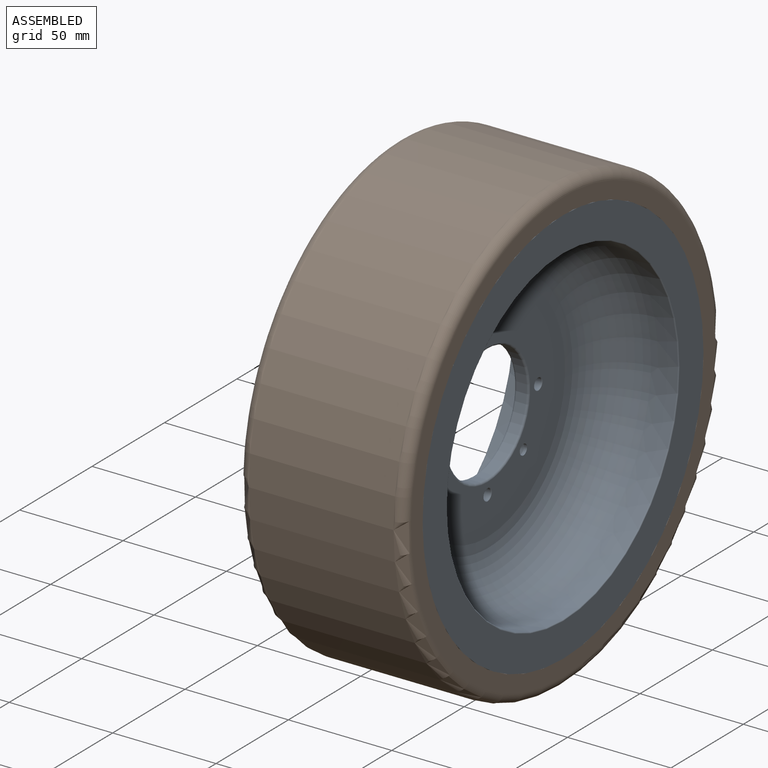
[diagram: assembled view]
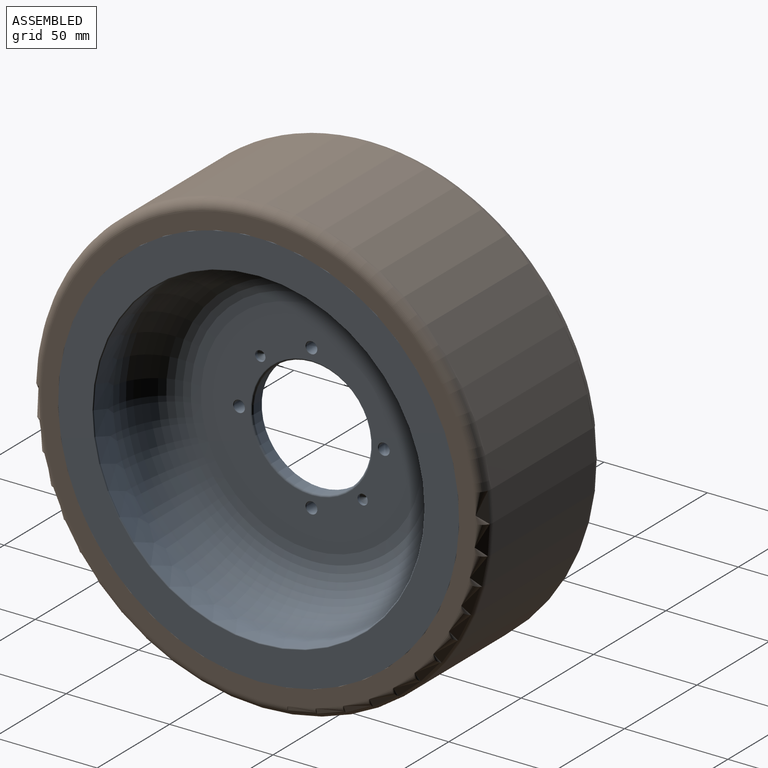
[diagram: assembled view, second angle]
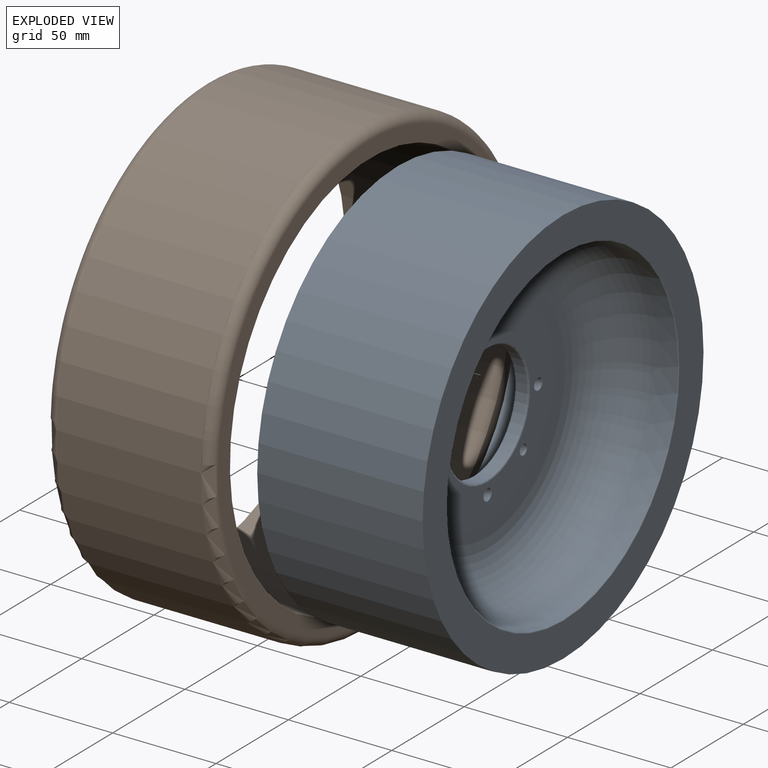
[diagram: exploded view]
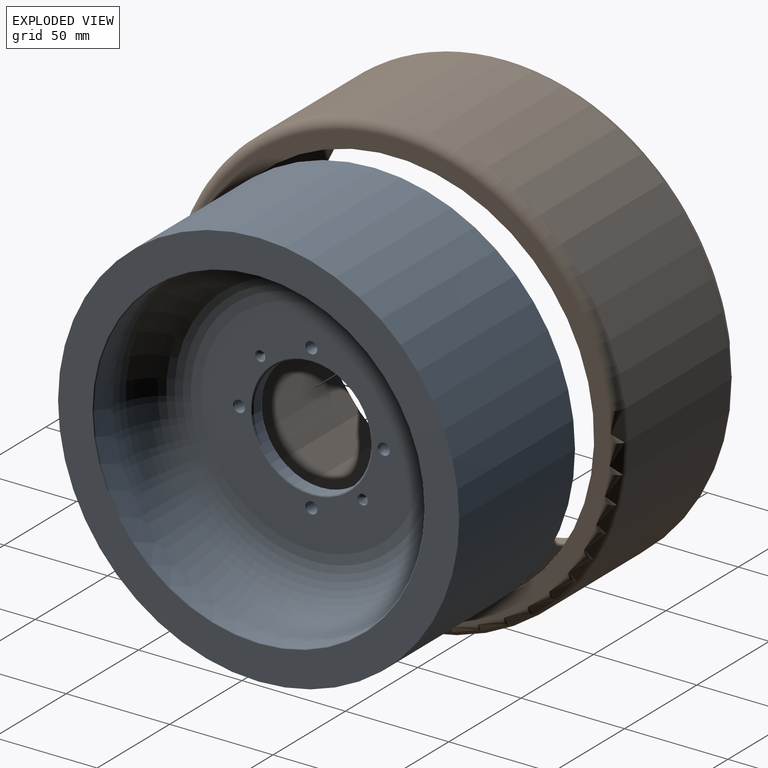
[diagram: exploded view, second angle]
ASSEMBLY  parts=2 mates=2
PART A: 30 faces, bbox 88.8x194x194 mm
  f0: cylinder r=97mm len=194mm, axis (-1,0,0), area 48757.5mm2, adj f1,f2
  f1: plane 194x194mm, normal (1,0,0), area 9200.9mm2, adj f0,f16
  f2: plane 194x194mm, normal (-1,0,0), area 9200.9mm2, adj f0,f17
  f3: cylinder r=80mm len=160mm, axis (-1,0,0), area 4775.2mm2, adj f5,f17
  f4: plane 107x107mm, normal (-1,0,0), area 6156mm2, adj f5,f14,f18,f20,f22,f24
  f5: torus R=53.5mm, axis (-1,0,0), area 18405mm2, adj f3,f4
  f6: cylinder r=80mm len=160mm, axis (-1,0,0), area 4775.2mm2, adj f7,f16
  f7: torus R=53.5mm, axis (-1,0,0), area 18405mm2, adj f6,f8
  f8: plane 107x107mm, normal (1,0,0), area 6116.7mm2, adj f7,f15,f19,f21,f23,f25,f27,f29
  f9: cylinder r=28.5mm len=57mm, axis (-1,0,0), area 895.4mm2, adj f14,f15
  f10: cylinder r=2.65mm len=6.6mm, axis (1,0,0), area 109.9mm2, adj f22,f23
  f11: cylinder r=2.65mm len=6.6mm, axis (1,0,0), area 109.9mm2, adj f18,f19
  f12: cylinder r=2.65mm len=6.6mm, axis (1,0,0), area 109.9mm2, adj f20,f21
  f13: cylinder r=2.65mm len=6.6mm, axis (1,0,0), area 109.9mm2, adj f24,f25
  f14: torus R=29.5mm, axis (-1,0,0), area 284.9mm2, adj f4,f9
  f15: torus R=29.5mm, axis (-1,0,0), area 284.9mm2, adj f8,f9
  f16: torus R=80.5mm, axis (1,0,0), area 395.7mm2, adj f1,f6
  f17: torus R=80.5mm, axis (1,0,0), area 395.7mm2, adj f2,f3
  f18: cone r=2.65mm half-angle=45deg, axis (-1,0,0), area 4.9mm2, adj f4,f11
  f19: cone r=2.65mm half-angle=45deg, axis (1,0,0), area 4.9mm2, adj f8,f11
  f20: cone r=2.65mm half-angle=45deg, axis (-1,0,0), area 4.9mm2, adj f4,f12
  f21: cone r=2.65mm half-angle=45deg, axis (1,0,0), area 4.9mm2, adj f8,f12
  f22: cone r=2.65mm half-angle=45deg, axis (-1,0,0), area 4.9mm2, adj f4,f10
  f23: cone r=2.65mm half-angle=45deg, axis (1,0,0), area 4.9mm2, adj f8,f10
  f24: cone r=2.65mm half-angle=45deg, axis (-1,0,0), area 4.9mm2, adj f4,f13
  f25: cone r=2.65mm half-angle=45deg, axis (1,0,0), area 4.9mm2, adj f8,f13
  f26: cone r=0mm half-angle=59deg, axis (1,0,0), area 22.9mm2, adj f27
  f27: cylinder r=2.5mm len=5mm, axis (1,0,0), area 23.6mm2, adj f8,f26
  f28: cone r=0mm half-angle=59deg, axis (1,0,0), area 22.9mm2, adj f29
  f29: cylinder r=2.5mm len=5mm, axis (1,0,0), area 23.6mm2, adj f8,f28
PART B: 6 faces, bbox 80x238.1x238.1 mm
  f0: cylinder r=97mm len=194mm, axis (-1,0,0), area 48757.5mm2, adj f2,f3
  f1: cylinder r=110mm len=220mm, axis (-1,0,0), area 48380.5mm2, adj f4,f5
  f2: plane 210x210mm, normal (1,0,0), area 5076.8mm2, adj f0,f5
  f3: plane 210x210mm, normal (-1,0,0), area 5076.8mm2, adj f0,f4
  f4: torus R=105mm, axis (1,0,0), area 5338.6mm2, adj f1,f3
  f5: torus R=105mm, axis (1,0,0), area 5338.6mm2, adj f1,f2
PLACE A t=(-11.69,-22.12,-23.85)mm
PLACE B t=(-51.69,-22.12,-23.85)mm
MATE planar A.f17 <-> B.f1  axis (1,0,0) through (28.31,-22.12,-23.85)mm
MATE cylindrical A.f0 <-> B.f0  axis (-1,0,0) through (-11.69,-22.12,-23.85)mm
